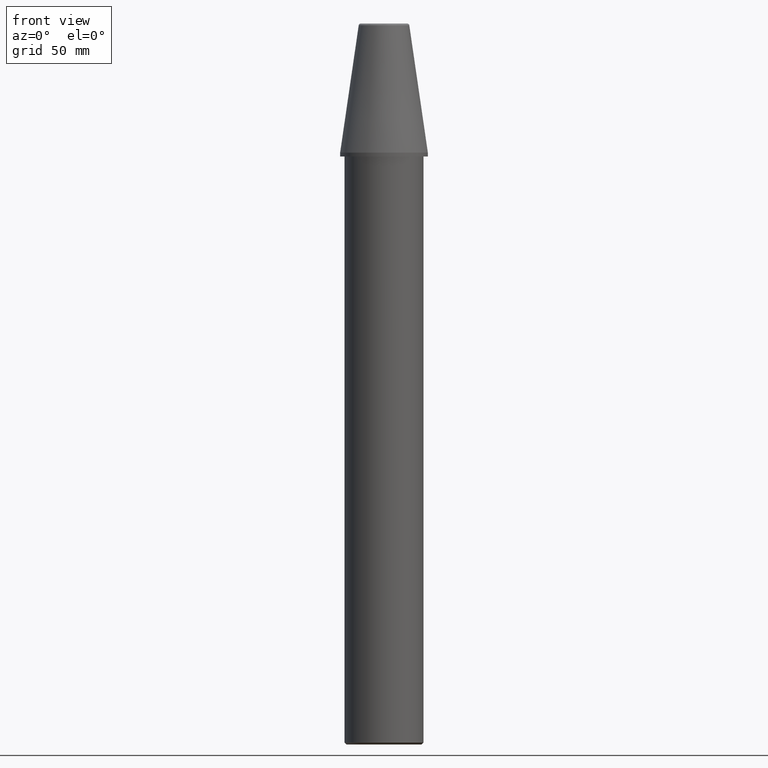
[diagram: clean part render]
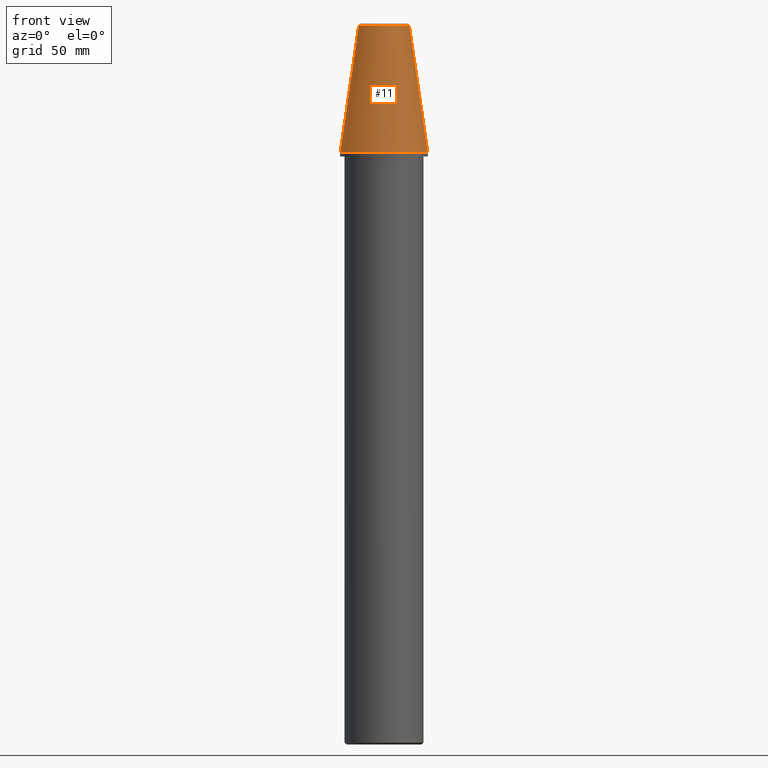
[diagram: same view with one face highlighted and labeled with its STEP entity id]
A machine part, front view. The second image highlights one B-rep face of the part: STEP entity #11.
In plain terms, the highlighted conical surface has half-angle 8.297 deg.
Its self-contained STEP definition (entity closure, byte-faithful):
#3 = LINE ( 'NONE', #332, #277 ) ;
#11 = ADVANCED_FACE ( 'NONE', ( #112 ), #220, .T. ) ;
#17 = VERTEX_POINT ( 'NONE', #385 ) ;
#23 = VERTEX_POINT ( 'NONE', #388 ) ;
#86 = CARTESIAN_POINT ( 'NONE',  ( 22.22499999999999400, 2.721777511104991700E-015, 300.0000000000000600 ) ) ;
#87 = EDGE_CURVE ( 'NONE', #413, #325, #416, .T. ) ;
#95 = EDGE_CURVE ( 'NONE', #17, #325, #3, .T. ) ;
#102 = AXIS2_PLACEMENT_3D ( 'NONE', #335, #334, #333 ) ;
#112 = FACE_OUTER_BOUND ( 'NONE', #260, .T. ) ;
#126 = ORIENTED_EDGE ( 'NONE', *, *, #95, .T. ) ;
#149 = VECTOR ( 'NONE', #303, 1000.000000000000100 ) ;
#156 = ORIENTED_EDGE ( 'NONE', *, *, #167, .F. ) ;
#160 = DIRECTION ( 'NONE',  ( -1.000000000000000000, 0.0000000000000000000, 0.0000000000000000000 ) ) ;
#163 = DIRECTION ( 'NONE',  ( 0.0000000000000000000, 0.0000000000000000000, -1.000000000000000000 ) ) ;
#165 = CARTESIAN_POINT ( 'NONE',  ( 0.0000000000000000000, 0.0000000000000000000, 364.5443081893178000 ) ) ;
#167 = EDGE_CURVE ( 'NONE', #23, #413, #250, .T. ) ;
#191 = CARTESIAN_POINT ( 'NONE',  ( -22.22499999999999400, 0.0000000000000000000, 300.0000000000000600 ) ) ;
#220 = CONICAL_SURFACE ( 'NONE', #312, 22.22500000000000100, 0.1448138077659779600 ) ;
#250 = LINE ( 'NONE', #353, #149 ) ;
#260 = EDGE_LOOP ( 'NONE', ( #156, #412, #126, #414 ) ) ;
#274 = AXIS2_PLACEMENT_3D ( 'NONE', #165, #163, #160 ) ;
#277 = VECTOR ( 'NONE', #346, 1000.000000000000100 ) ;
#303 = DIRECTION ( 'NONE',  ( 0.1443081888917994200, 1.767265616170938000E-017, -0.9895327920886546300 ) ) ;
#310 = CIRCLE ( 'NONE', #274, 12.81220206895366700 ) ;
#312 = AXIS2_PLACEMENT_3D ( 'NONE', #399, #400, #393 ) ;
#325 = VERTEX_POINT ( 'NONE', #191 ) ;
#332 = CARTESIAN_POINT ( 'NONE',  ( -22.22500000000000100, 0.0000000000000000000, 300.0000000000000000 ) ) ;
#333 = DIRECTION ( 'NONE',  ( -1.000000000000000000, 0.0000000000000000000, 0.0000000000000000000 ) ) ;
#334 = DIRECTION ( 'NONE',  ( 0.0000000000000000000, 0.0000000000000000000, -1.000000000000000000 ) ) ;
#335 = CARTESIAN_POINT ( 'NONE',  ( 0.0000000000000000000, 0.0000000000000000000, 300.0000000000000600 ) ) ;
#346 = DIRECTION ( 'NONE',  ( -0.1443081888917994200, 0.0000000000000000000, -0.9895327920886546300 ) ) ;
#347 = EDGE_CURVE ( 'NONE', #23, #17, #310, .T. ) ;
#353 = CARTESIAN_POINT ( 'NONE',  ( 22.22500000000000100, 2.721777511104992800E-015, 300.0000000000000000 ) ) ;
#385 = CARTESIAN_POINT ( 'NONE',  ( -12.81220206913550500, 0.0000000000000000000, 364.5443081893798200 ) ) ;
#388 = CARTESIAN_POINT ( 'NONE',  ( 12.81220206913804400, -1.313912403005700600E-009, 364.5443081893624800 ) ) ;
#393 = DIRECTION ( 'NONE',  ( -1.000000000000000000, 0.0000000000000000000, 0.0000000000000000000 ) ) ;
#399 = CARTESIAN_POINT ( 'NONE',  ( 0.0000000000000000000, 0.0000000000000000000, 300.0000000000000000 ) ) ;
#400 = DIRECTION ( 'NONE',  ( 0.0000000000000000000, 0.0000000000000000000, -1.000000000000000000 ) ) ;
#412 = ORIENTED_EDGE ( 'NONE', *, *, #347, .T. ) ;
#413 = VERTEX_POINT ( 'NONE', #86 ) ;
#414 = ORIENTED_EDGE ( 'NONE', *, *, #87, .F. ) ;
#416 = CIRCLE ( 'NONE', #102, 22.22499999999999800 ) ;